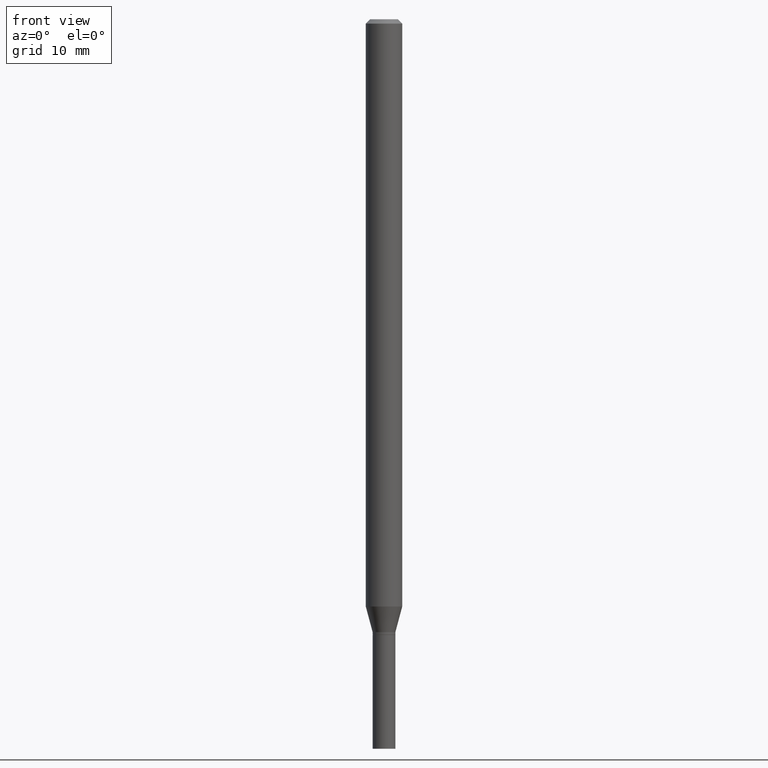
[diagram: clean part render]
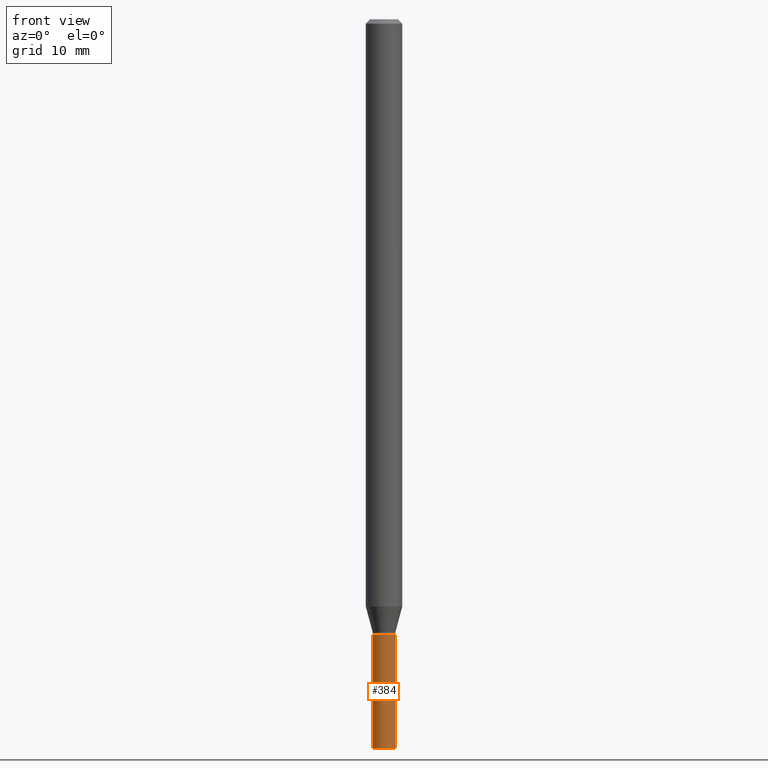
[diagram: same view with one face highlighted and labeled with its STEP entity id]
A machine part, front view. The second image highlights one B-rep face of the part: STEP entity #384.
In plain terms, the highlighted cylindrical surface (edge-blend (fillet) strip) has radius 0.9906 mm, axis along (-0, 0, 1).
Its self-contained STEP definition (entity closure, byte-faithful):
#16 = VECTOR ( 'NONE', #465, 39.37007874015748143 ) ;
#20 = CARTESIAN_POINT ( 'NONE',  ( 0.03899999999999999994, -2.723355444297643682E-16, 1.901708942560414931E-30 ) ) ;
#28 = EDGE_CURVE ( 'NONE', #127, #290, #143, .T. ) ;
#31 = CIRCLE ( 'NONE', #430, 0.03899999999999999994 ) ;
#42 = ORIENTED_EDGE ( 'NONE', *, *, #438, .T. ) ;
#46 = EDGE_LOOP ( 'NONE', ( #75, #293, #42, #111 ) ) ;
#48 = DIRECTION ( 'NONE',  ( 1.000000000000000000, -6.982962677686258033E-15, 0.000000000000000000 ) ) ;
#54 = DIRECTION ( 'NONE',  ( 1.000000000000000000, -6.982962677686265922E-15, 4.876176775795935793E-29 ) ) ;
#61 = DIRECTION ( 'NONE',  ( -2.445468806185136597E-29, 3.491481338843145583E-15, 1.000000000000000000 ) ) ;
#75 = ORIENTED_EDGE ( 'NONE', *, *, #184, .F. ) ;
#79 = CARTESIAN_POINT ( 'NONE',  ( 0.03899999999999999994, -7.639361169388800962E-15, -2.110000000000000320 ) ) ;
#89 = DIRECTION ( 'NONE',  ( -2.445468806185136597E-29, 3.491481338843145583E-15, 1.000000000000000000 ) ) ;
#98 = AXIS2_PLACEMENT_3D ( 'NONE', #278, #61, #206 ) ;
#111 = ORIENTED_EDGE ( 'NONE', *, *, #265, .F. ) ;
#127 = VERTEX_POINT ( 'NONE', #140 ) ;
#140 = CARTESIAN_POINT ( 'NONE',  ( -0.03899999999999999994, -7.770752819087011622E-15, -2.500000000000000000 ) ) ;
#143 = CIRCLE ( 'NONE', #98, 0.03899999999999999994 ) ;
#169 = FACE_OUTER_BOUND ( 'NONE', #46, .T. ) ;
#171 = CARTESIAN_POINT ( 'NONE',  ( -0.03899999999999999994, -7.770752819087011622E-15, -2.110000000000000320 ) ) ;
#184 = EDGE_CURVE ( 'NONE', #127, #406, #218, .T. ) ;
#197 = CARTESIAN_POINT ( 'NONE',  ( 5.159939181050639071E-29, -7.367025624959036939E-15, -2.110000000000000320 ) ) ;
#206 = DIRECTION ( 'NONE',  ( 1.000000000000000000, -6.982962677686283277E-15, 0.000000000000000000 ) ) ;
#218 = LINE ( 'NONE', #283, #16 ) ;
#232 = LINE ( 'NONE', #20, #327 ) ;
#261 = VERTEX_POINT ( 'NONE', #79 ) ;
#265 = EDGE_CURVE ( 'NONE', #406, #261, #31, .T. ) ;
#271 = DIRECTION ( 'NONE',  ( -2.445468806185136877E-29, 3.491481338843145188E-15, 1.000000000000000000 ) ) ;
#278 = CARTESIAN_POINT ( 'NONE',  ( 6.113672015462842613E-29, -8.728703347107864943E-15, -2.500000000000000000 ) ) ;
#281 = AXIS2_PLACEMENT_3D ( 'NONE', #305, #89, #54 ) ;
#283 = CARTESIAN_POINT ( 'NONE',  ( -0.03899999999999999994, 2.771116669464390721E-16, -1.918384685199413078E-30 ) ) ;
#290 = VERTEX_POINT ( 'NONE', #337 ) ;
#293 = ORIENTED_EDGE ( 'NONE', *, *, #28, .T. ) ;
#305 = CARTESIAN_POINT ( 'NONE',  ( 0.000000000000000000, 0.000000000000000000, 0.000000000000000000 ) ) ;
#308 = CYLINDRICAL_SURFACE ( 'NONE', #281, 0.03899999999999999994 ) ;
#327 = VECTOR ( 'NONE', #271, 39.37007874015748143 ) ;
#337 = CARTESIAN_POINT ( 'NONE',  ( 0.03899999999999999994, -9.001038891537628966E-15, -2.500000000000000000 ) ) ;
#384 = ADVANCED_FACE ( 'NONE', ( #169 ), #308, .T. ) ;
#406 = VERTEX_POINT ( 'NONE', #171 ) ;
#407 = DIRECTION ( 'NONE',  ( -2.445468806185136597E-29, 3.491481338843145583E-15, 1.000000000000000000 ) ) ;
#430 = AXIS2_PLACEMENT_3D ( 'NONE', #197, #407, #48 ) ;
#438 = EDGE_CURVE ( 'NONE', #290, #261, #232, .T. ) ;
#465 = DIRECTION ( 'NONE',  ( -2.445468806185136877E-29, 3.491481338843145188E-15, 1.000000000000000000 ) ) ;